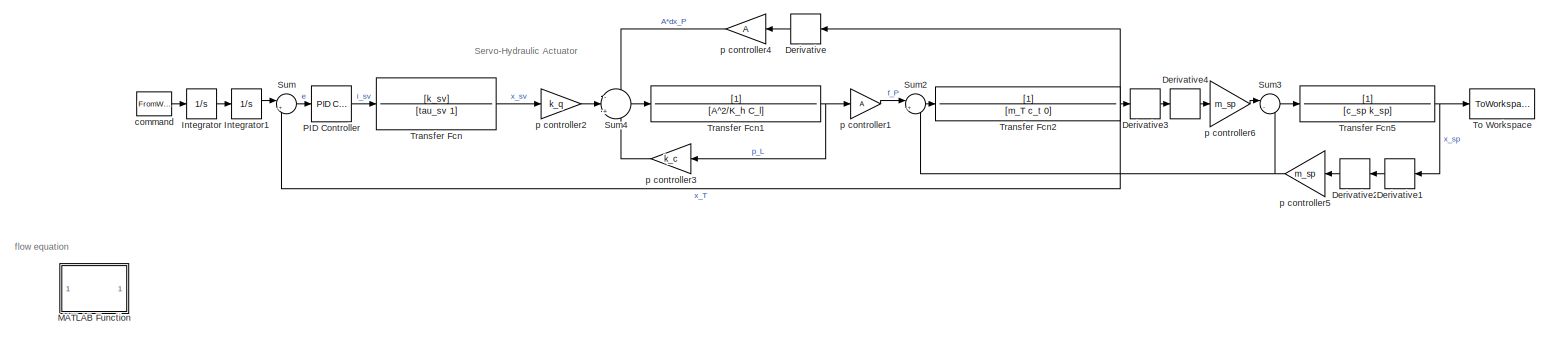
[diagram: root canvas - part 1/1, most of the canvas]
MODEL slx_0a649359c5ac
KIND model
CONFIG AbsTol = auto
CONFIG EnableMultiTasking = off
CONFIG FixedStep = t_step
CONFIG MaxStep = 1e-6
CONFIG MinStep = auto
CONFIG RelTol = 1e-6
CONFIG SampleTimeConstraint = Unconstrained
CONFIG SolverName = ode8
CONFIG StartTime = 0.0
CONFIG StopTime = 30
BLOCK [Derivative] Derivative
  NameLocation = top
BLOCK [Derivative] Derivative1
  NameLocation = top
BLOCK [Derivative] Derivative2
  NameLocation = top
BLOCK [Derivative] Derivative3
BLOCK [Derivative] Derivative4
BLOCK [Integrator] Integrator
BLOCK [Integrator] Integrator1
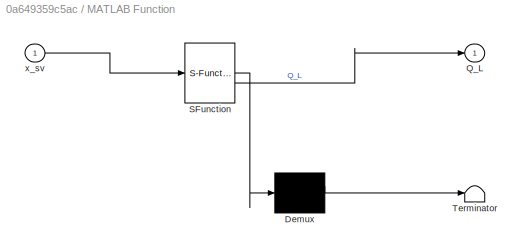
BLOCK [SubSystem] MATLAB Function
  Commented = on
  ErrorFcn = Stateflow.Translate.translate
  PermitHierarchicalResolution = ExplicitOnly
  SFBlockType = MATLAB Function
  TreatAsAtomicUnit = on
BLOCK [Demux] MATLAB Function/ Demux 
  Outputs = 1
BLOCK [S-Function] MATLAB Function/ SFunction 
  EnableBusSupport = off
  FunctionName = sf_sfun
  PortCounts = [1 2]
  SFcnIsStateOwnerBlock = off
  SFunctionDeploymentMode = off
  Tag = Stateflow S-Function 2
BLOCK [Terminator] MATLAB Function/ Terminator 
BLOCK [Outport] MATLAB Function/Q_L
  VectorParamsAs1DForOutWhenUnconnected = off
BLOCK [Inport] MATLAB Function/x_sv
BLOCK [Reference] PID Controller  REF=slpidlib/PID Controller
  LibrarySourceBlock = simulink/Continuous/PID Controller
  SourceBlock = slpidlib/PID Controller
  SourceType = PID 1dof
BLOCK [Sum] Sum
  Inputs = |+-
BLOCK [Sum] Sum2
  Inputs = |+-
BLOCK [Sum] Sum3
  Inputs = |--
BLOCK [Sum] Sum4
  Inputs = -|+|-
BLOCK [ToWorkspace] To Workspace
  FixptAsFi = on
  MaxDataPoints = inf
  SampleTime = -1
  SaveFormat = Timeseries
  VariableName = simout
BLOCK [TransferFcn] Transfer Fcn
  Denominator = [tau_sv 1]
  Numerator = [k_sv]
BLOCK [TransferFcn] Transfer Fcn1
  Denominator = [A^2/K_h C_l]
BLOCK [TransferFcn] Transfer Fcn2
  Denominator = [m_T c_t 0]
BLOCK [TransferFcn] Transfer Fcn5
  Denominator = [c_sp k_sp]
BLOCK [FromWorkspace] command
  VariableName = ddx
BLOCK [Gain] p controller1
  Gain = A
BLOCK [Gain] p controller2
  Gain = k_q
BLOCK [Gain] p controller3
  Gain = k_c
  NameLocation = top
BLOCK [Gain] p controller4
  Gain = A
  NameLocation = top
BLOCK [Gain] p controller5
  Gain = m_sp
  NameLocation = top
BLOCK [Gain] p controller6
  Gain = m_sp
ANNOTATION (root): Servo-Hydraulic Actuator
ANNOTATION (root): flow equation
LINE Derivative1:1 -> Derivative2:1
LINE Derivative2:1 -> p controller5:1
LINE Derivative3:1 -> Derivative4:1
LINE Derivative4:1 -> p controller6:1
LINE Derivative:1 -> p controller4:1
LINE Integrator1:1 -> Sum:1
LINE Integrator:1 -> Integrator1:1
LINE PID Controller:1 -> Transfer Fcn:1
LINE Sum2:1 -> Transfer Fcn2:1
LINE Sum3:1 -> Transfer Fcn5:1
LINE Sum4:1 -> Transfer Fcn1:1
LINE Sum:1 -> PID Controller:1
NET Transfer Fcn1:1 -> p controller1:1, p controller3:1
NET Transfer Fcn2:1 -> Derivative3:1, Derivative:1, Sum:2
NET Transfer Fcn5:1 -> Derivative1:1, To Workspace:1
LINE Transfer Fcn:1 -> p controller2:1
LINE command:1 -> Integrator:1
LINE p controller1:1 -> Sum2:1
LINE p controller2:1 -> Sum4:2
LINE p controller3:1 -> Sum4:3
LINE p controller4:1 -> Sum4:1
NET p controller5:1 -> Sum2:2, Sum3:2
LINE p controller6:1 -> Sum3:1
note: NET lines group one-source signal fan-out (src -> all destinations, sorted); 1:1 wires keep LINE
CHART MATLAB Function states=1 transitions=1
  STATE_LABEL 'eML_blk_kernel()'
  STATE_LABEL 'SCRIPT:\nfunction Q_L = fcn(x_sv)\n%#codegen\n\nQ_L = k_q*x_sv - k_c*p_L ;'
CHART  states=0 transitions=0
